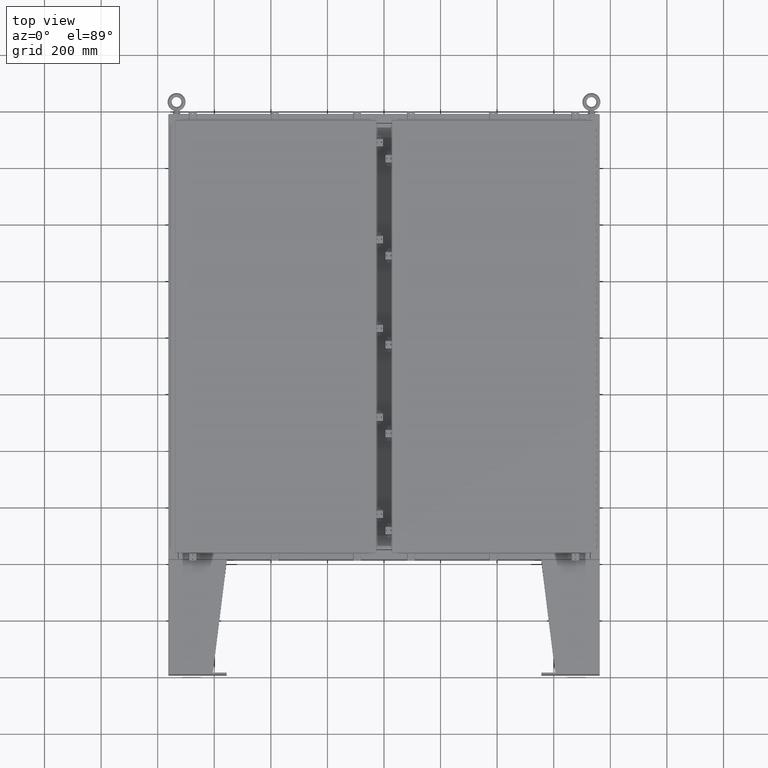
[diagram: clean part render]
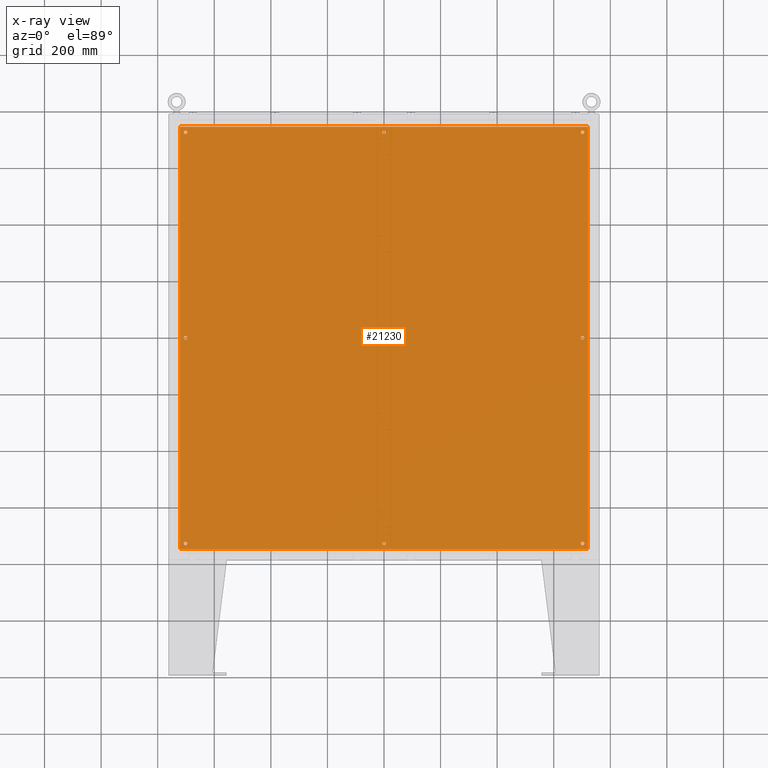
[diagram: x-ray — body ghosted, one internal face saturated and labeled with its STEP entity id]
A machine part, top view, then the same camera in x-ray: the body is ghosted and one INTERNAL B-rep face — a face not visible from any outside direction — is saturated and labeled: STEP entity #21230.
In plain terms, the highlighted planar face has unit normal (0, 0, -1).
Its self-contained STEP definition (entity closure, byte-faithful):
#10 = LINE ( 'NONE', #59474, #42920 ) ;
#113 = VERTEX_POINT ( 'NONE', #38350 ) ;
#457 = DIRECTION ( 'NONE',  ( -1.000000000000000000, 0.0000000000000000000, 0.0000000000000000000 ) ) ;
#750 = AXIS2_PLACEMENT_3D ( 'NONE', #62656, #30362, #68035 ) ;
#1137 = CARTESIAN_POINT ( 'NONE',  ( 27.37500000000000400, 1.595948060193031100E-015, -0.1039999999999999800 ) ) ;
#1140 = CIRCLE ( 'NONE', #26556, 0.2499999999999987000 ) ;
#1245 = PLANE ( 'NONE',  #11018 ) ;
#1936 = DIRECTION ( 'NONE',  ( -1.000000000000000000, 0.0000000000000000000, 0.0000000000000000000 ) ) ;
#2197 = CARTESIAN_POINT ( 'NONE',  ( -27.87500000000000000, -28.62500000000000700, -0.1039999999999999800 ) ) ;
#2223 = FACE_BOUND ( 'NONE', #21165, .T. ) ;
#2725 = DIRECTION ( 'NONE',  ( -1.000000000000000000, 0.0000000000000000000, 0.0000000000000000000 ) ) ;
#3841 = CARTESIAN_POINT ( 'NONE',  ( -0.2500000000000010000, -28.62500000000000700, -0.1039999999999999800 ) ) ;
#3923 = DIRECTION ( 'NONE',  ( 0.0000000000000000000, 1.000000000000000000, 0.0000000000000000000 ) ) ;
#4628 = ORIENTED_EDGE ( 'NONE', *, *, #66942, .T. ) ;
#5561 = ORIENTED_EDGE ( 'NONE', *, *, #22722, .T. ) ;
#6878 = DIRECTION ( 'NONE',  ( -0.0000000000000000000, -0.0000000000000000000, 1.000000000000000000 ) ) ;
#7773 = VERTEX_POINT ( 'NONE', #21034 ) ;
#8671 = CIRCLE ( 'NONE', #63823, 0.2499999999999987000 ) ;
#8773 = CARTESIAN_POINT ( 'NONE',  ( 27.37500000000000400, 28.62500000000001400, -0.1039999999999999800 ) ) ;
#8842 = CARTESIAN_POINT ( 'NONE',  ( -27.62500000000000400, -5.200841675074779300E-015, -0.1039999999999999800 ) ) ;
#8936 = AXIS2_PLACEMENT_3D ( 'NONE', #66387, #34075, #1936 ) ;
#10897 = VERTEX_POINT ( 'NONE', #41667 ) ;
#10962 = CARTESIAN_POINT ( 'NONE',  ( -27.37500000000000400, 28.62500000000000700, -0.1039999999999999800 ) ) ;
#11018 = AXIS2_PLACEMENT_3D ( 'NONE', #33397, #55119, #22851 ) ;
#11150 = CARTESIAN_POINT ( 'NONE',  ( 27.62500000000000400, 1.565331890214347700E-015, -0.1039999999999999800 ) ) ;
#12597 = VECTOR ( 'NONE', #24912, 39.37007874015748100 ) ;
#13054 = ORIENTED_EDGE ( 'NONE', *, *, #25309, .T. ) ;
#13070 = VERTEX_POINT ( 'NONE', #46487 ) ;
#13718 = CARTESIAN_POINT ( 'NONE',  ( -27.62500000000000400, -28.62500000000000700, -0.1039999999999999800 ) ) ;
#14004 = CARTESIAN_POINT ( 'NONE',  ( -28.50000000000000000, -29.38299999999999600, -0.1040000000000009400 ) ) ;
#14234 = DIRECTION ( 'NONE',  ( -1.000000000000000000, 0.0000000000000000000, 0.0000000000000000000 ) ) ;
#14404 = EDGE_CURVE ( 'NONE', #49123, #14746, #10, .T. ) ;
#14746 = VERTEX_POINT ( 'NONE', #41927 ) ;
#15368 = EDGE_LOOP ( 'NONE', ( #61828, #25234 ) ) ;
#15460 = EDGE_CURVE ( 'NONE', #113, #49531, #66374, .T. ) ;
#15514 = VERTEX_POINT ( 'NONE', #32134 ) ;
#15649 = ORIENTED_EDGE ( 'NONE', *, *, #64095, .T. ) ;
#16498 = FACE_BOUND ( 'NONE', #34908, .T. ) ;
#16533 = DIRECTION ( 'NONE',  ( -1.000000000000000000, 0.0000000000000000000, 0.0000000000000000000 ) ) ;
#17143 = EDGE_CURVE ( 'NONE', #17208, #18743, #59918, .T. ) ;
#17208 = VERTEX_POINT ( 'NONE', #21143 ) ;
#17267 = AXIS2_PLACEMENT_3D ( 'NONE', #67173, #34887, #2725 ) ;
#17633 = LINE ( 'NONE', #57185, #12597 ) ;
#18223 = EDGE_CURVE ( 'NONE', #52281, #69119, #53053, .T. ) ;
#18452 = EDGE_CURVE ( 'NONE', #15514, #49123, #17633, .T. ) ;
#18724 = ORIENTED_EDGE ( 'NONE', *, *, #38108, .F. ) ;
#18743 = VERTEX_POINT ( 'NONE', #39257 ) ;
#19098 = DIRECTION ( 'NONE',  ( -1.000000000000000000, 0.0000000000000000000, 0.0000000000000000000 ) ) ;
#20683 = CIRCLE ( 'NONE', #21190, 0.2499999999999987000 ) ;
#20720 = EDGE_CURVE ( 'NONE', #43483, #13070, #59519, .T. ) ;
#20899 = DIRECTION ( 'NONE',  ( -0.0000000000000000000, -0.0000000000000000000, 1.000000000000000000 ) ) ;
#20992 = CARTESIAN_POINT ( 'NONE',  ( 27.62500000000000400, 1.565331890214347700E-015, -0.1039999999999999800 ) ) ;
#21034 = CARTESIAN_POINT ( 'NONE',  ( 28.38300000000000600, -29.38299999999999200, -0.1040000000000009400 ) ) ;
#21143 = CARTESIAN_POINT ( 'NONE',  ( -27.87500000000000000, -5.170225505096096300E-015, -0.1039999999999999800 ) ) ;
#21165 = EDGE_LOOP ( 'NONE', ( #67479, #42933 ) ) ;
#21190 = AXIS2_PLACEMENT_3D ( 'NONE', #13718, #51410, #19098 ) ;
#21230 = ADVANCED_FACE ( 'NONE', ( #45163, #59446, #32444, #30773, #16498, #2223, #57774, #43440, #29112 ), #1245, .T. ) ;
#21817 = AXIS2_PLACEMENT_3D ( 'NONE', #64919, #32603, #457 ) ;
#21906 = ORIENTED_EDGE ( 'NONE', *, *, #15460, .T. ) ;
#22722 = EDGE_CURVE ( 'NONE', #69119, #52281, #43243, .T. ) ;
#22851 = DIRECTION ( 'NONE',  ( -1.000000000000000000, 0.0000000000000000000, -0.0000000000000000000 ) ) ;
#23663 = CARTESIAN_POINT ( 'NONE',  ( 27.62500000000002100, -28.62499999999999600, -0.1039999999999999800 ) ) ;
#24347 = VERTEX_POINT ( 'NONE', #10962 ) ;
#24453 = CARTESIAN_POINT ( 'NONE',  ( 0.0000000000000000000, -28.62500000000000700, -0.1039999999999999800 ) ) ;
#24912 = DIRECTION ( 'NONE',  ( -1.000000000000000000, -0.0000000000000000000, -0.0000000000000000000 ) ) ;
#24931 = CARTESIAN_POINT ( 'NONE',  ( -27.62500000000000400, 28.62500000000000700, -0.1039999999999999800 ) ) ;
#25004 = EDGE_LOOP ( 'NONE', ( #59418, #5561 ) ) ;
#25081 = AXIS2_PLACEMENT_3D ( 'NONE', #53174, #20899, #58563 ) ;
#25234 = ORIENTED_EDGE ( 'NONE', *, *, #33874, .T. ) ;
#25309 = EDGE_CURVE ( 'NONE', #52469, #36247, #62968, .T. ) ;
#26085 = DIRECTION ( 'NONE',  ( -0.0000000000000000000, -0.0000000000000000000, 1.000000000000000000 ) ) ;
#26388 = DIRECTION ( 'NONE',  ( -1.000000000000000000, 0.0000000000000000000, 0.0000000000000000000 ) ) ;
#26556 = AXIS2_PLACEMENT_3D ( 'NONE', #24931, #62617, #30325 ) ;
#26618 = CARTESIAN_POINT ( 'NONE',  ( 27.62500000000002100, -28.62499999999999600, -0.1039999999999999800 ) ) ;
#27056 = AXIS2_PLACEMENT_3D ( 'NONE', #39085, #6878, #44513 ) ;
#27199 = DIRECTION ( 'NONE',  ( 0.0000000000000000000, -1.000000000000000000, 0.0000000000000000000 ) ) ;
#27339 = VERTEX_POINT ( 'NONE', #37541 ) ;
#27577 = CARTESIAN_POINT ( 'NONE',  ( -27.87500000000000000, 28.62500000000000700, -0.1039999999999999800 ) ) ;
#28175 = AXIS2_PLACEMENT_3D ( 'NONE', #61881, #29596, #67285 ) ;
#28796 = AXIS2_PLACEMENT_3D ( 'NONE', #20992, #58653, #26388 ) ;
#29036 = DIRECTION ( 'NONE',  ( -1.000000000000000000, 0.0000000000000000000, 0.0000000000000000000 ) ) ;
#29112 = FACE_OUTER_BOUND ( 'NONE', #65283, .T. ) ;
#29596 = DIRECTION ( 'NONE',  ( -0.0000000000000000000, -0.0000000000000000000, 1.000000000000000000 ) ) ;
#29825 = DIRECTION ( 'NONE',  ( -1.000000000000000000, 0.0000000000000000000, 0.0000000000000000000 ) ) ;
#30325 = DIRECTION ( 'NONE',  ( -1.000000000000000000, 0.0000000000000000000, 0.0000000000000000000 ) ) ;
#30332 = EDGE_LOOP ( 'NONE', ( #35398, #50793 ) ) ;
#30362 = DIRECTION ( 'NONE',  ( -0.0000000000000000000, -0.0000000000000000000, 1.000000000000000000 ) ) ;
#30482 = EDGE_CURVE ( 'NONE', #34953, #58486, #32760, .T. ) ;
#30773 = FACE_BOUND ( 'NONE', #30332, .T. ) ;
#31992 = DIRECTION ( 'NONE',  ( -1.000000000000000000, 0.0000000000000000000, 0.0000000000000000000 ) ) ;
#32103 = ORIENTED_EDGE ( 'NONE', *, *, #20720, .T. ) ;
#32134 = CARTESIAN_POINT ( 'NONE',  ( 28.38300000000000600, 29.38299999999999200, -0.1040000000000009400 ) ) ;
#32444 = FACE_BOUND ( 'NONE', #66002, .T. ) ;
#32603 = DIRECTION ( 'NONE',  ( -0.0000000000000000000, -0.0000000000000000000, 1.000000000000000000 ) ) ;
#32760 = CIRCLE ( 'NONE', #50328, 0.2499999999999987000 ) ;
#33397 = CARTESIAN_POINT ( 'NONE',  ( 0.0000000000000000000, 0.0000000000000000000, -0.1039999999999999800 ) ) ;
#33874 = EDGE_CURVE ( 'NONE', #58364, #24347, #36375, .T. ) ;
#34075 = DIRECTION ( 'NONE',  ( -0.0000000000000000000, -0.0000000000000000000, 1.000000000000000000 ) ) ;
#34117 = CARTESIAN_POINT ( 'NONE',  ( 27.87500000000000000, 28.62500000000001400, -0.1039999999999999800 ) ) ;
#34887 = DIRECTION ( 'NONE',  ( -0.0000000000000000000, -0.0000000000000000000, 1.000000000000000000 ) ) ;
#34908 = EDGE_LOOP ( 'NONE', ( #21906, #15649 ) ) ;
#34953 = VERTEX_POINT ( 'NONE', #63448 ) ;
#35189 = ORIENTED_EDGE ( 'NONE', *, *, #14404, .F. ) ;
#35398 = ORIENTED_EDGE ( 'NONE', *, *, #57989, .T. ) ;
#35580 = LINE ( 'NONE', #41549, #53353 ) ;
#36247 = VERTEX_POINT ( 'NONE', #3841 ) ;
#36375 = CIRCLE ( 'NONE', #750, 0.2499999999999987000 ) ;
#37541 = CARTESIAN_POINT ( 'NONE',  ( 27.37500000000002100, -28.62499999999999600, -0.1039999999999999800 ) ) ;
#38108 = EDGE_CURVE ( 'NONE', #14746, #7773, #69781, .T. ) ;
#38350 = CARTESIAN_POINT ( 'NONE',  ( -27.37500000000000400, -28.62500000000000700, -0.1039999999999999800 ) ) ;
#39085 = CARTESIAN_POINT ( 'NONE',  ( 27.62500000000000400, 28.62500000000001400, -0.1039999999999999800 ) ) ;
#39257 = CARTESIAN_POINT ( 'NONE',  ( -27.37500000000000400, -5.200841675074779300E-015, -0.1039999999999999800 ) ) ;
#40277 = AXIS2_PLACEMENT_3D ( 'NONE', #26618, #64312, #31992 ) ;
#41549 = CARTESIAN_POINT ( 'NONE',  ( 28.38300000000000600, -29.38299999999999200, -0.1040000000000009400 ) ) ;
#41595 = EDGE_LOOP ( 'NONE', ( #13054, #4628 ) ) ;
#41667 = CARTESIAN_POINT ( 'NONE',  ( 27.87500000000001800, -28.62499999999999600, -0.1039999999999999800 ) ) ;
#41927 = CARTESIAN_POINT ( 'NONE',  ( -28.38299999999999600, -29.38299999999999600, -0.1040000000000009400 ) ) ;
#42920 = VECTOR ( 'NONE', #27199, 39.37007874015748100 ) ;
#42933 = ORIENTED_EDGE ( 'NONE', *, *, #66259, .T. ) ;
#43243 = CIRCLE ( 'NONE', #28175, 0.2499999999999987000 ) ;
#43440 = FACE_BOUND ( 'NONE', #15368, .T. ) ;
#43483 = VERTEX_POINT ( 'NONE', #43824 ) ;
#43824 = CARTESIAN_POINT ( 'NONE',  ( -0.2499999999999998300, 28.62500000000000700, -0.1039999999999999800 ) ) ;
#44367 = ORIENTED_EDGE ( 'NONE', *, *, #62789, .F. ) ;
#44513 = DIRECTION ( 'NONE',  ( -1.000000000000000000, 0.0000000000000000000, 0.0000000000000000000 ) ) ;
#45163 = FACE_BOUND ( 'NONE', #41595, .T. ) ;
#45655 = AXIS2_PLACEMENT_3D ( 'NONE', #8842, #46492, #14234 ) ;
#46487 = CARTESIAN_POINT ( 'NONE',  ( 0.2499999999999998300, 28.62500000000000700, -0.1039999999999999800 ) ) ;
#46492 = DIRECTION ( 'NONE',  ( -0.0000000000000000000, -0.0000000000000000000, 1.000000000000000000 ) ) ;
#47973 = ORIENTED_EDGE ( 'NONE', *, *, #30482, .T. ) ;
#48572 = ORIENTED_EDGE ( 'NONE', *, *, #63447, .T. ) ;
#48809 = DIRECTION ( 'NONE',  ( -0.0000000000000000000, -0.0000000000000000000, 1.000000000000000000 ) ) ;
#49123 = VERTEX_POINT ( 'NONE', #57051 ) ;
#49531 = VERTEX_POINT ( 'NONE', #2197 ) ;
#50073 = CIRCLE ( 'NONE', #8936, 0.2499999999999998300 ) ;
#50328 = AXIS2_PLACEMENT_3D ( 'NONE', #11150, #48809, #16533 ) ;
#50793 = ORIENTED_EDGE ( 'NONE', *, *, #17143, .T. ) ;
#51268 = EDGE_CURVE ( 'NONE', #10897, #27339, #8671, .T. ) ;
#51410 = DIRECTION ( 'NONE',  ( -0.0000000000000000000, -0.0000000000000000000, 1.000000000000000000 ) ) ;
#52281 = VERTEX_POINT ( 'NONE', #34117 ) ;
#52288 = ORIENTED_EDGE ( 'NONE', *, *, #62295, .T. ) ;
#52469 = VERTEX_POINT ( 'NONE', #68019 ) ;
#53053 = CIRCLE ( 'NONE', #27056, 0.2499999999999987000 ) ;
#53174 = CARTESIAN_POINT ( 'NONE',  ( -27.62500000000000400, -28.62500000000000700, -0.1039999999999999800 ) ) ;
#53353 = VECTOR ( 'NONE', #3923, 39.37007874015748100 ) ;
#54114 = AXIS2_PLACEMENT_3D ( 'NONE', #58358, #26085, #63774 ) ;
#55119 = DIRECTION ( 'NONE',  ( 0.0000000000000000000, 0.0000000000000000000, -1.000000000000000000 ) ) ;
#55452 = EDGE_CURVE ( 'NONE', #24347, #58364, #1140, .T. ) ;
#55844 = AXIS2_PLACEMENT_3D ( 'NONE', #24453, #62113, #29825 ) ;
#56659 = CIRCLE ( 'NONE', #21817, 0.2500000000000010000 ) ;
#56819 = CIRCLE ( 'NONE', #45655, 0.2499999999999987000 ) ;
#57051 = CARTESIAN_POINT ( 'NONE',  ( -28.38299999999999600, 29.38299999999999200, -0.1039999999999921100 ) ) ;
#57172 = VECTOR ( 'NONE', #62505, 39.37007874015748100 ) ;
#57185 = CARTESIAN_POINT ( 'NONE',  ( 28.50000000000000400, 29.38300000000000600, -0.1040000000000009400 ) ) ;
#57774 = FACE_BOUND ( 'NONE', #25004, .T. ) ;
#57989 = EDGE_CURVE ( 'NONE', #18743, #17208, #56819, .T. ) ;
#58358 = CARTESIAN_POINT ( 'NONE',  ( -27.62500000000000400, -5.200841675074779300E-015, -0.1039999999999999800 ) ) ;
#58364 = VERTEX_POINT ( 'NONE', #27577 ) ;
#58486 = VERTEX_POINT ( 'NONE', #1137 ) ;
#58563 = DIRECTION ( 'NONE',  ( -1.000000000000000000, 0.0000000000000000000, 0.0000000000000000000 ) ) ;
#58653 = DIRECTION ( 'NONE',  ( -0.0000000000000000000, -0.0000000000000000000, 1.000000000000000000 ) ) ;
#59418 = ORIENTED_EDGE ( 'NONE', *, *, #18223, .T. ) ;
#59446 = FACE_BOUND ( 'NONE', #63809, .T. ) ;
#59474 = CARTESIAN_POINT ( 'NONE',  ( -28.38299999999999600, 29.38299999999999200, -0.1039999999999921100 ) ) ;
#59519 = CIRCLE ( 'NONE', #17267, 0.2499999999999998300 ) ;
#59918 = CIRCLE ( 'NONE', #54114, 0.2499999999999987000 ) ;
#61329 = DIRECTION ( 'NONE',  ( -0.0000000000000000000, -0.0000000000000000000, 1.000000000000000000 ) ) ;
#61828 = ORIENTED_EDGE ( 'NONE', *, *, #55452, .T. ) ;
#61881 = CARTESIAN_POINT ( 'NONE',  ( 27.62500000000000400, 28.62500000000001400, -0.1039999999999999800 ) ) ;
#62113 = DIRECTION ( 'NONE',  ( -0.0000000000000000000, -0.0000000000000000000, 1.000000000000000000 ) ) ;
#62295 = EDGE_CURVE ( 'NONE', #13070, #43483, #50073, .T. ) ;
#62505 = DIRECTION ( 'NONE',  ( 1.000000000000000000, -0.0000000000000000000, -0.0000000000000000000 ) ) ;
#62617 = DIRECTION ( 'NONE',  ( -0.0000000000000000000, -0.0000000000000000000, 1.000000000000000000 ) ) ;
#62656 = CARTESIAN_POINT ( 'NONE',  ( -27.62500000000000400, 28.62500000000000700, -0.1039999999999999800 ) ) ;
#62789 = EDGE_CURVE ( 'NONE', #7773, #15514, #35580, .T. ) ;
#62807 = ORIENTED_EDGE ( 'NONE', *, *, #18452, .F. ) ;
#62968 = CIRCLE ( 'NONE', #55844, 0.2500000000000010000 ) ;
#63447 = EDGE_CURVE ( 'NONE', #58486, #34953, #68383, .T. ) ;
#63448 = CARTESIAN_POINT ( 'NONE',  ( 27.87500000000000000, 1.565331890214347700E-015, -0.1039999999999999800 ) ) ;
#63774 = DIRECTION ( 'NONE',  ( -1.000000000000000000, 0.0000000000000000000, 0.0000000000000000000 ) ) ;
#63809 = EDGE_LOOP ( 'NONE', ( #52288, #32103 ) ) ;
#63823 = AXIS2_PLACEMENT_3D ( 'NONE', #23663, #61329, #29036 ) ;
#64095 = EDGE_CURVE ( 'NONE', #49531, #113, #20683, .T. ) ;
#64312 = DIRECTION ( 'NONE',  ( -0.0000000000000000000, -0.0000000000000000000, 1.000000000000000000 ) ) ;
#64919 = CARTESIAN_POINT ( 'NONE',  ( 0.0000000000000000000, -28.62500000000000700, -0.1039999999999999800 ) ) ;
#65283 = EDGE_LOOP ( 'NONE', ( #18724, #35189, #62807, #44367 ) ) ;
#65914 = CIRCLE ( 'NONE', #40277, 0.2499999999999987000 ) ;
#66002 = EDGE_LOOP ( 'NONE', ( #47973, #48572 ) ) ;
#66259 = EDGE_CURVE ( 'NONE', #27339, #10897, #65914, .T. ) ;
#66374 = CIRCLE ( 'NONE', #25081, 0.2499999999999987000 ) ;
#66387 = CARTESIAN_POINT ( 'NONE',  ( 0.0000000000000000000, 28.62500000000000700, -0.1039999999999999800 ) ) ;
#66942 = EDGE_CURVE ( 'NONE', #36247, #52469, #56659, .T. ) ;
#67173 = CARTESIAN_POINT ( 'NONE',  ( 0.0000000000000000000, 28.62500000000000700, -0.1039999999999999800 ) ) ;
#67285 = DIRECTION ( 'NONE',  ( -1.000000000000000000, 0.0000000000000000000, 0.0000000000000000000 ) ) ;
#67479 = ORIENTED_EDGE ( 'NONE', *, *, #51268, .T. ) ;
#68019 = CARTESIAN_POINT ( 'NONE',  ( 0.2500000000000010000, -28.62500000000000700, -0.1039999999999999800 ) ) ;
#68035 = DIRECTION ( 'NONE',  ( -1.000000000000000000, 0.0000000000000000000, 0.0000000000000000000 ) ) ;
#68383 = CIRCLE ( 'NONE', #28796, 0.2499999999999987000 ) ;
#69119 = VERTEX_POINT ( 'NONE', #8773 ) ;
#69781 = LINE ( 'NONE', #14004, #57172 ) ;